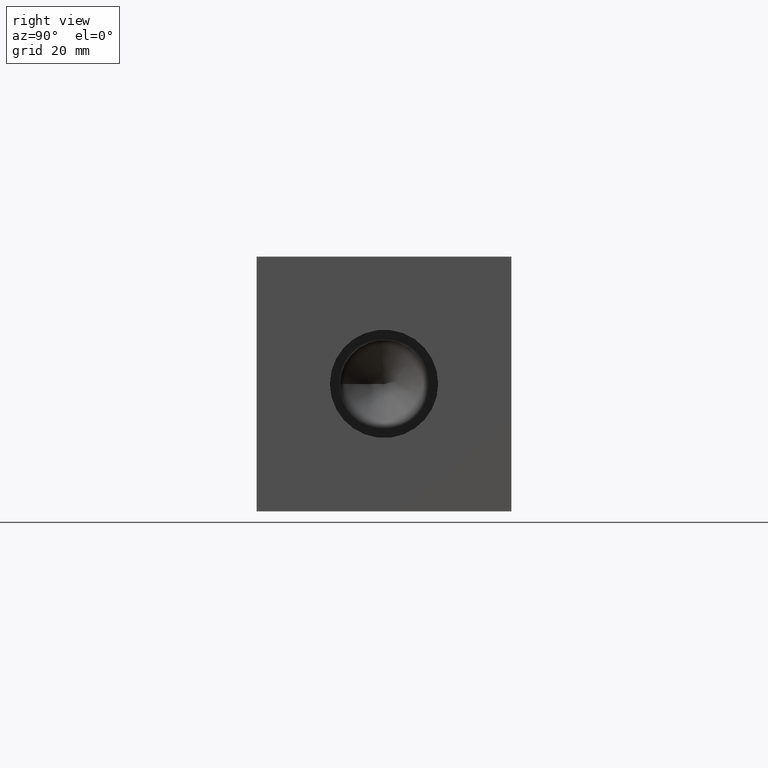
[diagram: clean part render]
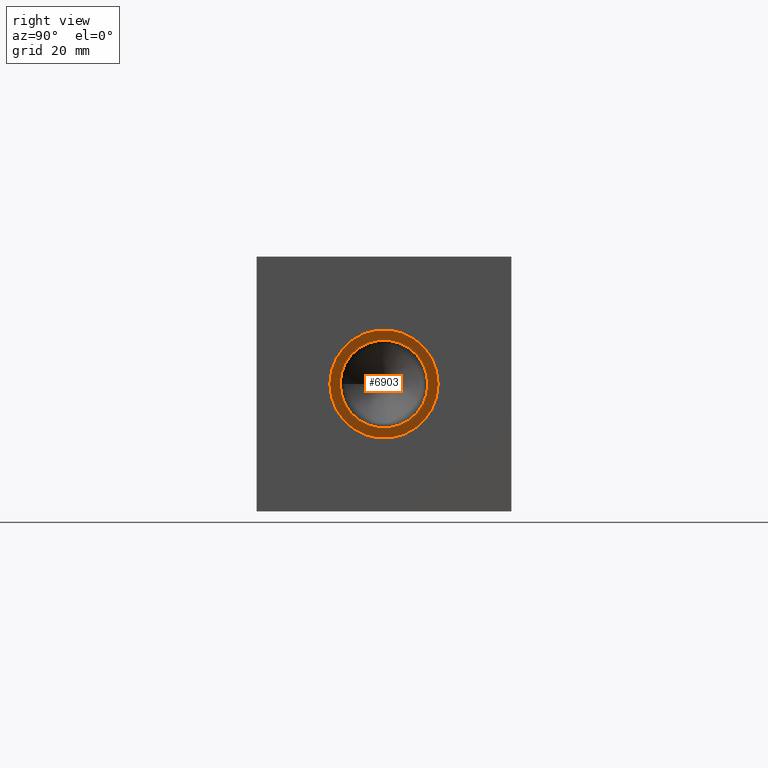
[diagram: same view with one face highlighted and labeled with its STEP entity id]
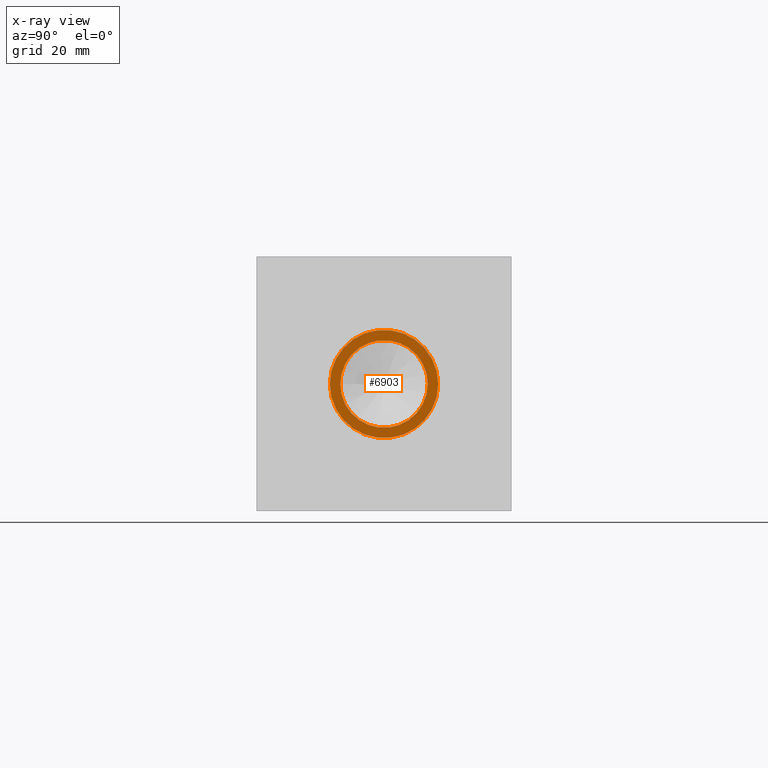
[diagram: x-ray of the same camera — body ghosted, the highlighted face saturated]
A machine part, right view. The second image highlights one B-rep face of the part: STEP entity #6903.
The next image is the same camera in x-ray: the body ghosted, the highlighted face saturated — about 0% of this face is hidden behind the body in this view.
In plain terms, the highlighted planar face has unit normal (1, 0, 0).
Its self-contained STEP definition (entity closure, byte-faithful):
#72=CIRCLE('',#7190,10.795);
#73=CIRCLE('',#7191,10.795);
#74=CIRCLE('',#7192,8.7376);
#443=FACE_BOUND('',#1164,.T.);
#778=FACE_OUTER_BOUND('',#1163,.T.);
#1163=EDGE_LOOP('',(#5902,#5903));
#1164=EDGE_LOOP('',(#5904));
#3169=VERTEX_POINT('',#11691);
#3170=VERTEX_POINT('',#11692);
#3171=VERTEX_POINT('',#11695);
#4094=EDGE_CURVE('',#3169,#3170,#72,.T.);
#4095=EDGE_CURVE('',#3170,#3169,#73,.T.);
#4096=EDGE_CURVE('',#3171,#3171,#74,.T.);
#5902=ORIENTED_EDGE('',*,*,#4094,.T.);
#5903=ORIENTED_EDGE('',*,*,#4095,.T.);
#5904=ORIENTED_EDGE('',*,*,#4096,.F.);
#6269=PLANE('',#7189);
#6903=ADVANCED_FACE('',(#778,#443),#6269,.T.);
#7189=AXIS2_PLACEMENT_3D('',#11690,#8400,#8401);
#7190=AXIS2_PLACEMENT_3D('',#11693,#8402,#8403);
#7191=AXIS2_PLACEMENT_3D('',#11694,#8404,#8405);
#7192=AXIS2_PLACEMENT_3D('',#11696,#8406,#8407);
#8400=DIRECTION('center_axis',(1.,0.,0.));
#8401=DIRECTION('ref_axis',(0.,1.,0.));
#8402=DIRECTION('center_axis',(1.,0.,0.));
#8403=DIRECTION('ref_axis',(0.,1.,0.));
#8404=DIRECTION('center_axis',(1.,0.,0.));
#8405=DIRECTION('ref_axis',(0.,1.,0.));
#8406=DIRECTION('center_axis',(1.,0.,0.));
#8407=DIRECTION('ref_axis',(0.,1.,0.));
#11690=CARTESIAN_POINT('Origin',(111.633,25.4,25.4));
#11691=CARTESIAN_POINT('',(111.633,36.195,25.4));
#11692=CARTESIAN_POINT('',(111.633,14.605,25.4));
#11693=CARTESIAN_POINT('Origin',(111.633,25.4,25.4));
#11694=CARTESIAN_POINT('Origin',(111.633,25.4,25.4));
#11695=CARTESIAN_POINT('',(111.633,16.6624,25.4));
#11696=CARTESIAN_POINT('Origin',(111.633,25.4,25.4));